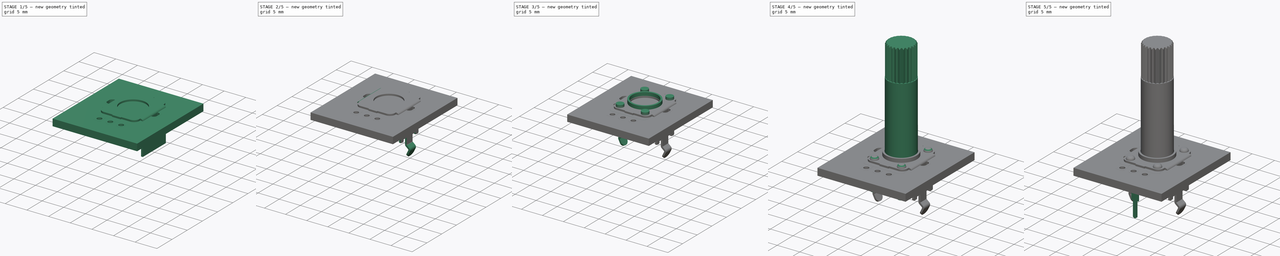
[diagram: build sequence overview — one tinted view per stage of 5, left to right]
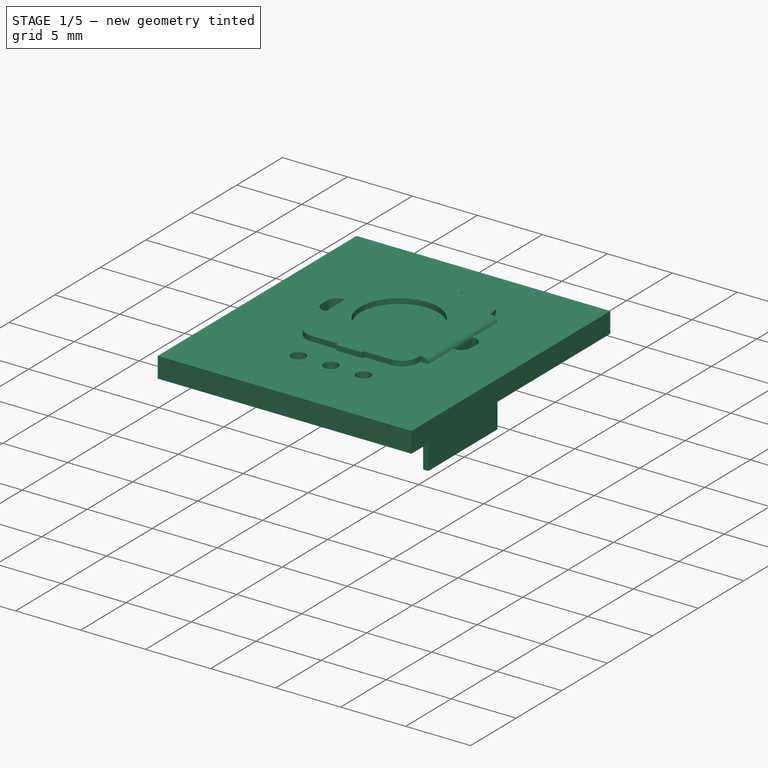
[diagram: stage 1 of 5 — iso view after this stage's code; geometry added in this stage tinted green]
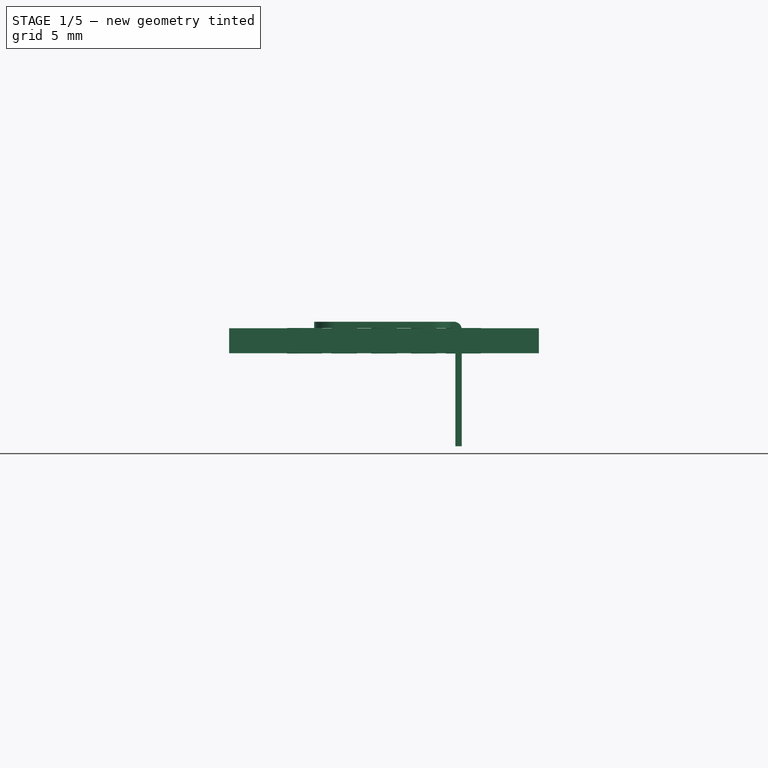
[diagram: stage 1 of 5 — front view after this stage's code; geometry added in this stage tinted green]
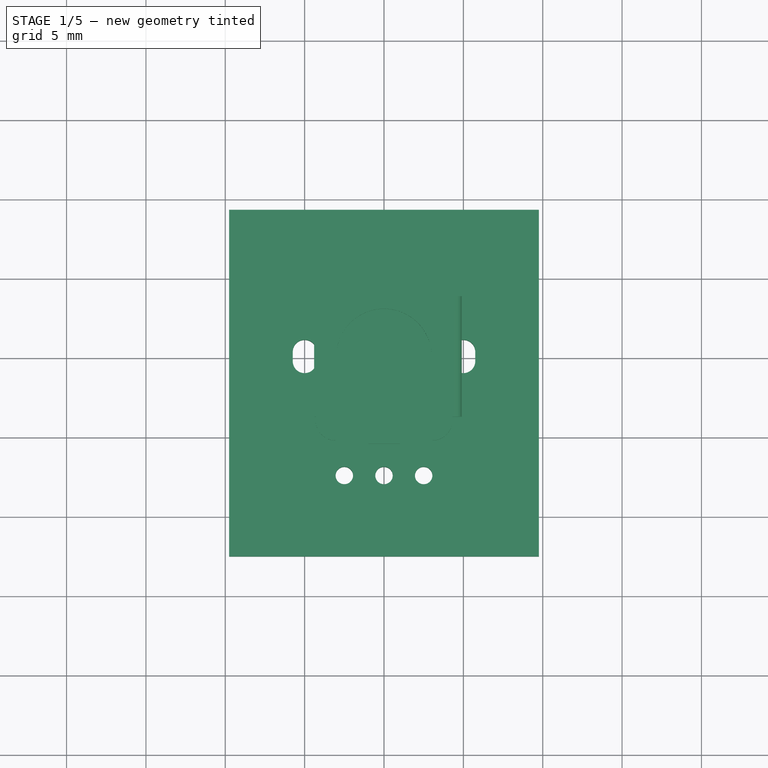
[diagram: stage 1 of 5 — top view after this stage's code; geometry added in this stage tinted green]
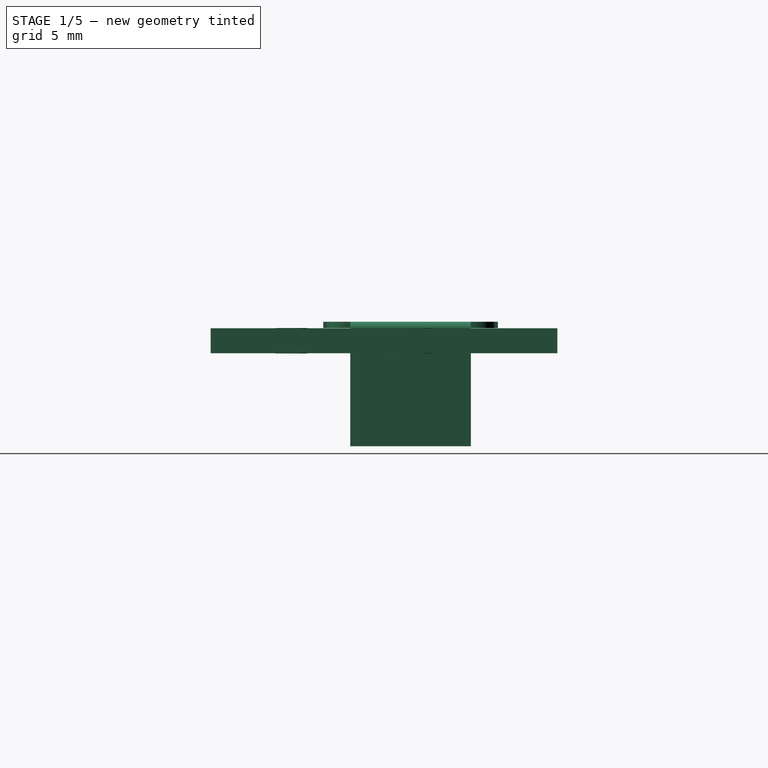
[diagram: stage 1 of 5 — right view after this stage's code; geometry added in this stage tinted green]
FCSTD DOCUMENT  (FreeCAD 0.17R13522 (Git))
Label: ALPS-RK09K_color_ksu
License: All rights reserved
LicenseURL: http://fr.wikipedia.org/wiki/<copyright redacted>
objects: Sketcher::SketchObject×12, PartDesign::Pad×7, PartDesign::FeaturePython×7, Part::Feature×6, PartDesign::Fillet×5, PartDesign::Pocket×5, Part::Part2DObjectPython×5, Part::FeaturePython×5, PartDesign::Body×3, PartDesign::Chamfer×2, PartDesign::PolarPattern×1, App::DocumentObjectGroup×1
note: 70 computed .brp shape members not serialized (recipe doc carries the construction recipe); baked Part::Feature solids carry a one-line shape summary decoded from their .brp

FEATURE [Part::Part2DObjectPython] Shape2DView003  # Draft 2D object (typed FeaturePython)
  HiddenLines = false
  InPlace = true
  Placement = pos=(0,0,0) rot=(0.707107,0,-0.707107;3.14159rad)
  Projection = (1,0,0)
  ProjectionMode = 0
  SegmentLength = 0.05
  Tessellation = false
  VisibleOnly = false
FEATURE [Part::Part2DObjectPython] Shape2DView004  # Draft 2D object (typed FeaturePython)
  HiddenLines = false
  InPlace = true
  Projection = (0,0,-1)
  ProjectionMode = 0
  SegmentLength = 0.05
  Tessellation = false
  VisibleOnly = false
FEATURE [Sketcher::SketchObject] Sketch005
  MapMode = 5
  Support = -> [XY_Plane001]
  sketch-geometry (25):
    g0: LineSegment StartX=-3.05 StartY=5.3 StartZ=0 EndX=-1 EndY=5.3 EndZ=0
    g1: LineSegment StartX=-1 StartY=5.3 StartZ=0 EndX=-1 EndY=5.5 EndZ=0
    g2: LineSegment StartX=-1 StartY=5.5 StartZ=0 EndX=1 EndY=5.5 EndZ=0
    g3: LineSegment StartX=1 StartY=5.5 StartZ=0 EndX=1 EndY=5.3 EndZ=0
    g4: LineSegment StartX=1 StartY=5.3 StartZ=0 EndX=3.05 EndY=5.3 EndZ=0
    g5: ArcOfCircle CenterX=-3.05 CenterY=4.05 CenterZ=0 NormalX=0 NormalY=0 NormalZ=1 AngleXU=0 Radius=1.25 StartAngle=1.5708 EndAngle=3.14159
    g6: ArcOfCircle CenterX=-3.05 CenterY=-4.05 CenterZ=0 NormalX=0 NormalY=0 NormalZ=1 AngleXU=0 Radius=1.25 StartAngle=3.14159 EndAngle=4.71239
    g7: LineSegment StartX=-3.05 StartY=-5.3 StartZ=0 EndX=-1 EndY=-5.3 EndZ=0
    g8: LineSegment StartX=-1 StartY=-5.3 StartZ=0 EndX=-1 EndY=-5.5 EndZ=0
    g9: LineSegment StartX=-1 StartY=-5.5 StartZ=0 EndX=1 EndY=-5.5 EndZ=0
    g10: LineSegment StartX=1 StartY=-5.5 StartZ=0 EndX=1 EndY=-5.3 EndZ=0
    g11: LineSegment StartX=1 StartY=-5.3 StartZ=0 EndX=3.05 EndY=-5.3 EndZ=0
    g12: ArcOfCircle CenterX=3.05 CenterY=4.05 CenterZ=0 NormalX=0 NormalY=0 NormalZ=1 AngleXU=0 Radius=1.25 StartAngle=0 EndAngle=1.5708
    g13: ArcOfCircle CenterX=3.05 CenterY=-4.05 CenterZ=0 NormalX=0 NormalY=0 NormalZ=1 AngleXU=0 Radius=1.25 StartAngle=4.71239 EndAngle=6.28319
    g14: Circle CenterX=0 CenterY=0 CenterZ=0 NormalX=0 NormalY=0 NormalZ=1 AngleXU=0 Radius=3
    g15: LineSegment StartX=-4.3 StartY=-3.8 StartZ=0 EndX=-4.4 EndY=-3.8 EndZ=0
    g16: LineSegment StartX=-4.4 StartY=-3.8 StartZ=0 EndX=-4.4 EndY=3.8 EndZ=0
    g17: LineSegment StartX=-4.4 StartY=3.8 StartZ=0 EndX=-4.3 EndY=3.8 EndZ=0
    g18: LineSegment StartX=-4.3 StartY=3.8 StartZ=0 EndX=-4.3 EndY=4.05 EndZ=0
    g19: LineSegment StartX=-4.3 StartY=-3.8 StartZ=0 EndX=-4.3 EndY=-4.05 EndZ=0
    g20: LineSegment StartX=4.3 StartY=4.05 StartZ=0 EndX=4.3 EndY=3.8 EndZ=0
    g21: LineSegment StartX=4.3 StartY=3.8 StartZ=0 EndX=4.4 EndY=3.8 EndZ=0
    g22: LineSegment StartX=4.4 StartY=3.8 StartZ=0 EndX=4.4 EndY=-3.8 EndZ=0
    g23: LineSegment StartX=4.4 StartY=-3.8 StartZ=0 EndX=4.3 EndY=-3.8 EndZ=0
    g24: LineSegment StartX=4.3 StartY=-3.8 StartZ=0 EndX=4.3 EndY=-4.05 EndZ=0
  constraints (66):
    c: Horizontal(g0)
    c: Coincident(g0,g1)
    c: Vertical(g1)
    c: Coincident(g1,g2)
    c: Horizontal(g2)
    c: Coincident(g2,g3)
    c: Coincident(g3,g4)
    c: Horizontal(g4)
    c: DistanceX(g1) = -1
    c: DistanceY(g1) = 5.5
    c: Symmetric(g1,g2,g-2)
    c: DistanceY(g1,g1) = 0.2
    c: Tangent(g5,g0) = 1.5708
    c: Radius(g5) = 1.25
    c: Symmetric(g5,g19,g-1)
    c: DistanceX(g5,g-1) = 4.3
    c: Horizontal(g7)
    c: Coincident(g7,g8)
    c: Vertical(g8)
    c: Coincident(g8,g9)
    c: Horizontal(g9)
    c: Coincident(g9,g10)
    c: Vertical(g10)
    c: Coincident(g10,g11)
    c: Horizontal(g11)
    c: Symmetric(g7,g0,g-1)
    c: Symmetric(g8,g1,g-1)
    c: Symmetric(g9,g8,g-2)
    c: Horizontal(g7,g10)
    c: Vertical(g11,g4)
    c: Symmetric(g4,g0,g-2)
    c: Symmetric(g20,g5,g-2)
    c: Tangent(g12,g4) = 1.5708
    c: Symmetric(g24,g20,g-1)
    c: Tangent(g13,g11) = -1.5708
    c: Tangent(g6,g7) = -1.5708
    c: Vertical(g3)
    c: Coincident(g14,g-1)
    c: Radius(g14) = 3
    c: Horizontal(g15)
    c: Coincident(g15,g16)
    c: Vertical(g16)
    c: Coincident(g16,g17)
    c: Horizontal(g17)
    c: Coincident(g18,g17)
    c: Vertical(g18)
    c: Coincident(g19,g15)
    c: Vertical(g19)
    c: Tangent(g18,g5) = 1.5708
    c: DistanceX(g16) = -4.4
    c: DistanceY(g16) = 3.8
    c: Symmetric(g16,g15,g-1)
    c: Tangent(g6,g19) = -1.5708
    c: Vertical(g20)
    c: Coincident(g20,g21)
    c: Horizontal(g21)
    c: Coincident(g21,g22)
    c: Vertical(g22)
    c: Coincident(g22,g23)
    c: Horizontal(g23)
    c: Coincident(g23,g24)
    c: Vertical(g24)
    c: Tangent(g13,g24) = 1.5708
    c: Symmetric(g21,g16,g-2)
    c: Tangent(g20,g12) = 1.5708
    c: Symmetric(g21,g22,g-1)
FEATURE [PartDesign::Pad] Pad004
  Length = 0.4
  Length2 = 100
  Profile = -> Sketch005
  Type = 0
FEATURE [PartDesign::FeaturePython] Bend  # WARN: FeaturePython — macro-defined, semantics opaque (R4)
  BaseFeature = -> Pad004
  angle = -90
  baseObject = -> Pad004 [Face14]
  extend1 = 0
  extend2 = 0
  gap1 = 0
  gap2 = 0
  invert = false
  kfactor = 0.45
  length = 7.35
  miterangle1 = 0
  miterangle2 = 0
  radius = 0.1
  reliefType = 0
  reliefd = 1
  reliefw = 0.5
  unfold = false
FEATURE [PartDesign::Body] Body001
  Group = -> [Sketch005,Pad004,Bend,Sketch006,Pocket001,Bend001,Bend002,Fillet002,Bend003,Sketch007,Pocket002,Bend004,Bend005,Fillet003,Sketch011,Pad006]
  Origin = -> Origin001
  Tip = -> Pad006
FEATURE [Part::Feature] Body002001  label="pin1"
  Placement = pos=(-2.5,0,0) rot=(0,0,1;0rad)
  shape: bbox 1.5 x 7.15 x 6.634 mm, 20 faces (baked)
FEATURE [Part::Feature] Body002002  label="pin3"
  Placement = pos=(2.5,0,0) rot=(0,0,1;0rad)
  shape: bbox 1.5 x 7.15 x 6.634 mm, 20 faces (baked)
FEATURE [Part::Feature] Body002003  label="pin2"
  shape: bbox 1.5 x 7.15 x 6.634 mm, 20 faces (baked)
FEATURE [Part::Feature] Body002004  label="Body003"
  shape: bbox 8.8 x 11.8 x 28.98 mm, 172 faces (baked)
FEATURE [Part::Feature] Body001001  label="Body004"
  shape: bbox 11.39 x 11 x 11.39 mm, 123 faces (baked)
FEATURE [Part::FeaturePython] Filk_lines  label="FrontSilk"  # a2plus imported part (geometry in sourceFile) (typed FeaturePython)
  fixedPosition = true
FEATURE [Part::FeaturePython] TopPads  # a2plus imported part (geometry in sourceFile) (typed FeaturePython)
  fixedPosition = true
FEATURE [Part::FeaturePython] BotPads  # a2plus imported part (geometry in sourceFile) (typed FeaturePython)
  fixedPosition = true
FEATURE [Part::FeaturePython] THPs  label="PTHs"  # a2plus imported part (geometry in sourceFile) (typed FeaturePython)
  fixedPosition = true
FEATURE [Part::FeaturePython] newPCB  label="Pcb"  # a2plus imported part (geometry in sourceFile) (typed FeaturePython)
  fixedPosition = true
FEATURE [App::DocumentObjectGroup] POT_SINGLE_P9_VERTICAL_fp
  Group = -> [Filk_lines,TopPads,BotPads,THPs,newPCB]
FEATURE [Part::Feature] Shape001  label="ALPS-RK09K"
  shape: bbox 11.39 x 12.65 x 33.19 mm, 350 faces (baked)
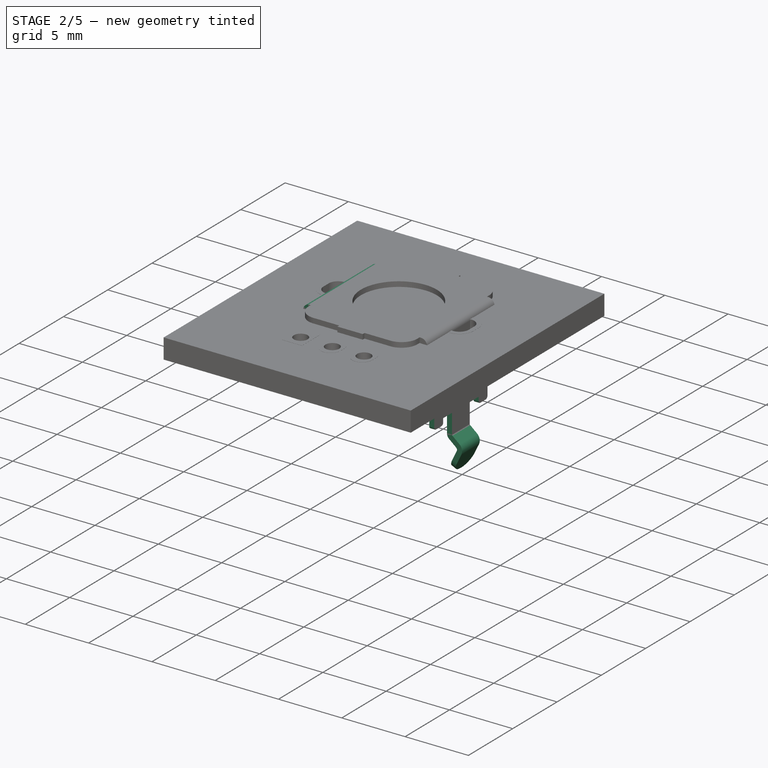
[diagram: stage 2 of 5 — iso view after this stage's code; geometry added in this stage tinted green]
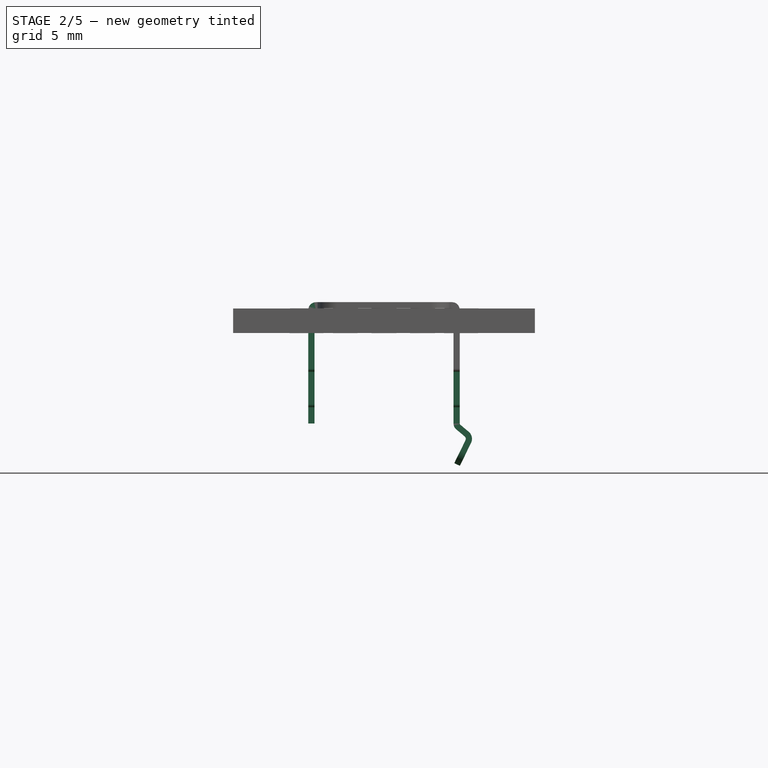
[diagram: stage 2 of 5 — front view after this stage's code; geometry added in this stage tinted green]
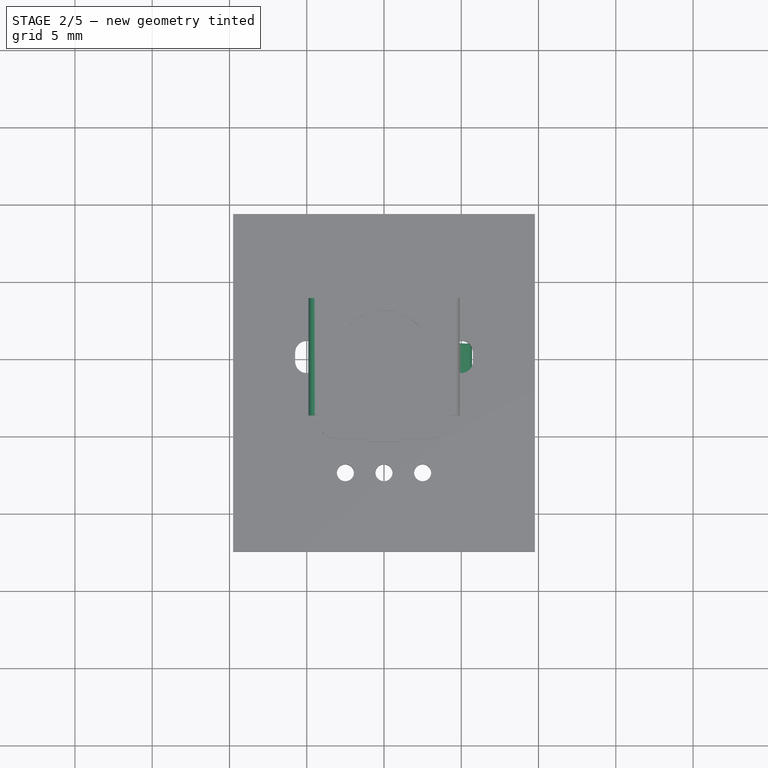
[diagram: stage 2 of 5 — top view after this stage's code; geometry added in this stage tinted green]
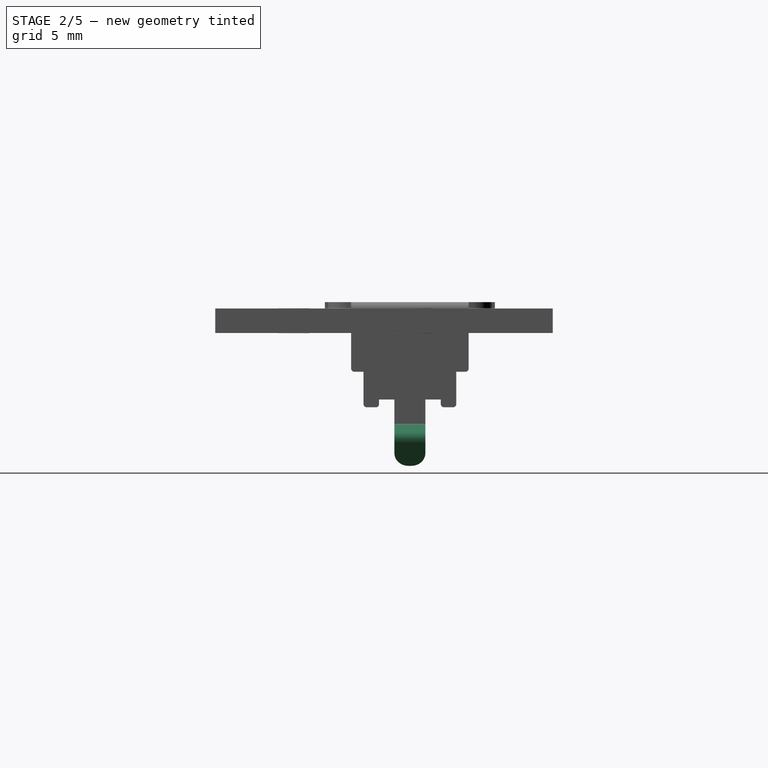
[diagram: stage 2 of 5 — right view after this stage's code; geometry added in this stage tinted green]
FEATURE [Sketcher::SketchObject] Sketch006
  MapMode = 5
  Placement = pos=(4.9,0,0) rot=(0.57735,0.57735,0.57735;2.0944rad)
  Support = -> [Bend]
  sketch-geometry (26):
    g0: LineSegment StartX=-1 StartY=-7.5 StartZ=0 EndX=-1 EndY=-5.9 EndZ=0
    g1: LineSegment StartX=-1 StartY=-5.9 StartZ=0 EndX=-2 EndY=-5.9 EndZ=0
    g2: LineSegment StartX=-2 StartY=-5.9 StartZ=0 EndX=-2 EndY=-6.2 EndZ=0
    g3: ArcOfCircle CenterX=-2.2 CenterY=-6.2 CenterZ=0 NormalX=0 NormalY=0 NormalZ=1 AngleXU=0 Radius=0.2 StartAngle=4.71239 EndAngle=6.28319
    g4: ArcOfCircle CenterX=-2.8 CenterY=-6.2 CenterZ=0 NormalX=0 NormalY=0 NormalZ=1 AngleXU=0 Radius=0.2 StartAngle=3.14159 EndAngle=4.71239
    g5: ArcOfCircle CenterX=2.2 CenterY=-6.2 CenterZ=0 NormalX=0 NormalY=0 NormalZ=1 AngleXU=0 Radius=0.2 StartAngle=3.14159 EndAngle=4.71239
    g6: ArcOfCircle CenterX=2.8 CenterY=-6.2 CenterZ=0 NormalX=0 NormalY=0 NormalZ=1 AngleXU=0 Radius=0.2 StartAngle=4.71239 EndAngle=6.28319
    g7: LineSegment StartX=-1 StartY=-7.5 StartZ=0 EndX=1 EndY=-7.5 EndZ=0
    g8: LineSegment StartX=1 StartY=-7.5 StartZ=0 EndX=1 EndY=-5.9 EndZ=0
    g9: LineSegment StartX=1 StartY=-5.9 StartZ=0 EndX=2 EndY=-5.9 EndZ=0
    g10: LineSegment StartX=2 StartY=-5.9 StartZ=0 EndX=2 EndY=-6.2 EndZ=0
    g11: LineSegment StartX=2.2 StartY=-6.4 StartZ=0 EndX=2.8 EndY=-6.4 EndZ=0
    g12: LineSegment StartX=3 StartY=-6.2 StartZ=0 EndX=3 EndY=-4.1 EndZ=0
    g13: LineSegment StartX=3 StartY=-4.1 StartZ=0 EndX=3.6 EndY=-4.1 EndZ=0
    g14: LineSegment StartX=-3 StartY=-6.2 StartZ=0 EndX=-3 EndY=-4.1 EndZ=0
    g15: LineSegment StartX=-3 StartY=-4.1 StartZ=0 EndX=-3.6 EndY=-4.1 EndZ=0
    g16: LineSegment StartX=-2.8 StartY=-6.4 StartZ=0 EndX=-2.2 EndY=-6.4 EndZ=0
    g17: ArcOfCircle CenterX=3.6 CenterY=-3.9 CenterZ=0 NormalX=0 NormalY=0 NormalZ=1 AngleXU=0 Radius=0.2 StartAngle=4.71239 EndAngle=6.28319
    g18: ArcOfCircle CenterX=-3.6 CenterY=-3.9 CenterZ=0 NormalX=0 NormalY=0 NormalZ=1 AngleXU=0 Radius=0.2 StartAngle=3.14159 EndAngle=4.71239
    g19: LineSegment StartX=3.8 StartY=-3.9 StartZ=0 EndX=3.8 EndY=-3 EndZ=0
    g20: LineSegment StartX=3.8 StartY=-3 StartZ=0 EndX=5 EndY=-3 EndZ=0
    g21: LineSegment StartX=5 StartY=-3 StartZ=0 EndX=5 EndY=-9 EndZ=0
    g22: LineSegment StartX=5 StartY=-9 StartZ=0 EndX=-5 EndY=-9 EndZ=0
    g23: LineSegment StartX=-5 StartY=-9 StartZ=0 EndX=-5 EndY=-3 EndZ=0
    g24: LineSegment StartX=-5 StartY=-3 StartZ=0 EndX=-3.8 EndY=-3 EndZ=0
    g25: LineSegment StartX=-3.8 StartY=-3 StartZ=0 EndX=-3.8 EndY=-3.9 EndZ=0
  constraints (70):
    c: Vertical(g0)
    c: Coincident(g0,g1)
    c: Horizontal(g1)
    c: Coincident(g1,g2)
    c: Vertical(g2)
    c: Coincident(g0,g7)
    c: Horizontal(g7)
    c: Coincident(g7,g8)
    c: Vertical(g8)
    c: Coincident(g8,g9)
    c: Horizontal(g9)
    c: Coincident(g9,g10)
    c: Vertical(g10)
    c: Tangent(g5,g11) = -1.5708
    c: Tangent(g6,g12) = -1.5708
    c: Coincident(g12,g13)
    c: Horizontal(g13)
    c: Tangent(g4,g14) = 1.5708
    c: Vertical(g14)
    c: Coincident(g14,g15)
    c: Horizontal(g15)
    c: Horizontal(g16)
    c: Tangent(g16,g3) = -1.5708
    c: Tangent(g16,g4) = -1.5708
    c: Tangent(g10,g5) = -1.5708
    c: Vertical(g12)
    c: Tangent(g17,g13) = -1.5708
    c: Tangent(g17,g19) = -1.5708
    c: Coincident(g19,g20)
    c: Horizontal(g20)
    c: Coincident(g20,g21)
    c: Vertical(g21)
    c: Coincident(g21,g22)
    c: Horizontal(g22)
    c: Coincident(g22,g23)
    c: Vertical(g23)
    c: Coincident(g23,g24)
    c: Horizontal(g24)
    c: Coincident(g24,g25)
    c: Vertical(g19)
    c: DistanceX(g14) = -3
    c: DistanceY(g14) = -4.1
    c: DistanceX(g0) = -1
    c: DistanceY(g0) = -5.9
    c: DistanceY(g0,g-1) = 7.5
    c: DistanceX(g22) = -5
    c: DistanceY(g22) = -9
    c: Vertical(g25)
    c: DistanceX(g1,g1) = 1
    c: DistanceY(g14,g14) = 2.1
    c: Radius(g4) = 0.2
    c: Radius(g18) = 0.2
    c: DistanceY(g23,g23) = 6
    c: Symmetric(g0,g7,g-2)
    c: Horizontal(g0,g8)
    c: Horizontal(g2,g5)
    c: Horizontal(g3,g5)
    c: Symmetric(g14,g12,g-2)
    c: Symmetric(g19,g24,g-2)
    c: Symmetric(g20,g23,g-2)
    c: Tangent(g3,g2) = 1.5708
    c: Tangent(g25,g18) = -1.5708
    c: Tangent(g18,g15) = 1.5708
    c: Symmetric(g9,g1,g-2)
    c: Symmetric(g5,g3,g-2)
    c: Symmetric(g6,g4,g-2)
    c: Tangent(g11,g6) = -1.5708
    c: Radius(g3) = 0.2
    c: Symmetric(g13,g15,g-2)
    c: DistanceX(g24,g-1) = 3.8
FEATURE [PartDesign::Pocket] Pocket001
  BaseFeature = -> Bend
  Length = 0.4
  Length2 = 100
  Profile = -> Sketch006
  Type = 0
FEATURE [PartDesign::FeaturePython] Bend001  # WARN: FeaturePython — macro-defined, semantics opaque (R4)
  BaseFeature = -> Pocket001
  angle = 50
  baseObject = -> Pocket001 [Face1]
  extend1 = 0
  extend2 = 0
  gap1 = 0
  gap2 = 0
  invert = false
  kfactor = 0.45
  length = 0.71
  miterangle1 = 0
  miterangle2 = 0
  radius = 0.1
  reliefType = 0
  reliefd = 0.5
  reliefw = 0.5
  unfold = false
FEATURE [PartDesign::FeaturePython] Bend002  # WARN: FeaturePython — macro-defined, semantics opaque (R4)
  BaseFeature = -> Bend001
  angle = 76
  baseObject = -> Bend001 [Face1]
  extend1 = 0
  extend2 = 0
  gap1 = 0
  gap2 = 0
  invert = true
  kfactor = 0.45
  length = 1.65
  miterangle1 = 0
  miterangle2 = 0
  radius = 0.2
  reliefType = 0
  reliefd = 1
  reliefw = 0.5
  unfold = false
FEATURE [PartDesign::Fillet] Fillet002
  Base = -> Bend002 [Edge2,Edge1]
  BaseFeature = -> Bend002
  Radius = 0.9
FEATURE [PartDesign::FeaturePython] Bend003  # WARN: FeaturePython — macro-defined, semantics opaque (R4)
  BaseFeature = -> Fillet002
  angle = 90
  baseObject = -> Fillet002 [Face52]
  extend1 = 0
  extend2 = 0
  gap1 = 0
  gap2 = 0
  invert = true
  kfactor = 0.45
  length = 7.35
  miterangle1 = 0
  miterangle2 = 0
  radius = 0.1
  reliefType = 0
  reliefd = 1
  reliefw = 0.5
  unfold = false
FEATURE [Sketcher::SketchObject] Sketch007
  MapMode = 5
  Placement = pos=(-4.9,0,0) rot=(0.57735,-0.57735,-0.57735;2.0944rad)
  Support = -> [Bend003]
  sketch-geometry (26):
    g0: LineSegment StartX=-1 StartY=-7.5 StartZ=0 EndX=-1 EndY=-5.9 EndZ=0
    g1: LineSegment StartX=-1 StartY=-5.9 StartZ=0 EndX=-2 EndY=-5.9 EndZ=0
    g2: LineSegment StartX=-2 StartY=-5.9 StartZ=0 EndX=-2 EndY=-6.2 EndZ=0
    g3: ArcOfCircle CenterX=-2.2 CenterY=-6.2 CenterZ=0 NormalX=0 NormalY=0 NormalZ=1 AngleXU=0 Radius=0.2 StartAngle=4.71239 EndAngle=6.28319
    g4: ArcOfCircle CenterX=-2.8 CenterY=-6.2 CenterZ=0 NormalX=0 NormalY=0 NormalZ=1 AngleXU=0 Radius=0.2 StartAngle=3.14159 EndAngle=4.71239
    g5: ArcOfCircle CenterX=2.2 CenterY=-6.2 CenterZ=0 NormalX=0 NormalY=0 NormalZ=1 AngleXU=0 Radius=0.2 StartAngle=3.14159 EndAngle=4.71239
    g6: ArcOfCircle CenterX=2.8 CenterY=-6.2 CenterZ=0 NormalX=0 NormalY=0 NormalZ=1 AngleXU=0 Radius=0.2 StartAngle=4.71239 EndAngle=6.28319
    g7: LineSegment StartX=-1 StartY=-7.5 StartZ=0 EndX=1 EndY=-7.5 EndZ=0
    g8: LineSegment StartX=1 StartY=-7.5 StartZ=0 EndX=1 EndY=-5.9 EndZ=0
    g9: LineSegment StartX=1 StartY=-5.9 StartZ=0 EndX=2 EndY=-5.9 EndZ=0
    g10: LineSegment StartX=2 StartY=-5.9 StartZ=0 EndX=2 EndY=-6.2 EndZ=0
    g11: LineSegment StartX=2.2 StartY=-6.4 StartZ=0 EndX=2.8 EndY=-6.4 EndZ=0
    g12: LineSegment StartX=3 StartY=-6.2 StartZ=0 EndX=3 EndY=-4.1 EndZ=0
    g13: LineSegment StartX=3 StartY=-4.1 StartZ=0 EndX=3.6 EndY=-4.1 EndZ=0
    g14: LineSegment StartX=-3 StartY=-6.2 StartZ=0 EndX=-3 EndY=-4.1 EndZ=0
    g15: LineSegment StartX=-3 StartY=-4.1 StartZ=0 EndX=-3.6 EndY=-4.1 EndZ=0
    g16: LineSegment StartX=-2.8 StartY=-6.4 StartZ=0 EndX=-2.2 EndY=-6.4 EndZ=0
    g17: ArcOfCircle CenterX=3.6 CenterY=-3.9 CenterZ=0 NormalX=0 NormalY=0 NormalZ=1 AngleXU=0 Radius=0.2 StartAngle=4.71239 EndAngle=6.28319
    g18: ArcOfCircle CenterX=-3.6 CenterY=-3.9 CenterZ=0 NormalX=0 NormalY=0 NormalZ=1 AngleXU=0 Radius=0.2 StartAngle=3.14159 EndAngle=4.71239
    g19: LineSegment StartX=3.8 StartY=-3.9 StartZ=0 EndX=3.8 EndY=-3 EndZ=0
    g20: LineSegment StartX=3.8 StartY=-3 StartZ=0 EndX=5 EndY=-3 EndZ=0
    g21: LineSegment StartX=5 StartY=-3 StartZ=0 EndX=5 EndY=-9 EndZ=0
    g22: LineSegment StartX=5 StartY=-9 StartZ=0 EndX=-5 EndY=-9 EndZ=0
    g23: LineSegment StartX=-5 StartY=-9 StartZ=0 EndX=-5 EndY=-3 EndZ=0
    g24: LineSegment StartX=-5 StartY=-3 StartZ=0 EndX=-3.8 EndY=-3 EndZ=0
    g25: LineSegment StartX=-3.8 StartY=-3 StartZ=0 EndX=-3.8 EndY=-3.9 EndZ=0
  constraints (70):
    c: Vertical(g0)
    c: Coincident(g0,g1)
    c: Horizontal(g1)
    c: Coincident(g1,g2)
    c: Vertical(g2)
    c: Coincident(g0,g7)
    c: Horizontal(g7)
    c: Coincident(g7,g8)
    c: Vertical(g8)
    c: Coincident(g8,g9)
    c: Horizontal(g9)
    c: Coincident(g9,g10)
    c: Vertical(g10)
    c: Tangent(g5,g11) = -1.5708
    c: Tangent(g6,g12) = -1.5708
    c: Coincident(g12,g13)
    c: Horizontal(g13)
    c: Tangent(g4,g14) = 1.5708
    c: Vertical(g14)
    c: Coincident(g14,g15)
    c: Horizontal(g15)
    c: Horizontal(g16)
    c: Tangent(g16,g3) = -1.5708
    c: Tangent(g16,g4) = -1.5708
    c: Tangent(g10,g5) = -1.5708
    c: Vertical(g12)
    c: Tangent(g17,g13) = -1.5708
    c: Tangent(g17,g19) = -1.5708
    c: Coincident(g19,g20)
    c: Horizontal(g20)
    c: Coincident(g20,g21)
    c: Vertical(g21)
    c: Coincident(g21,g22)
    c: Horizontal(g22)
    c: Coincident(g22,g23)
    c: Vertical(g23)
    c: Coincident(g23,g24)
    c: Horizontal(g24)
    c: Coincident(g24,g25)
    c: Vertical(g19)
    c: DistanceX(g14) = -3
    c: DistanceY(g14) = -4.1
    c: DistanceX(g0) = -1
    c: DistanceY(g0) = -5.9
    c: DistanceY(g0,g-1) = 7.5
    c: DistanceX(g22) = -5
    c: DistanceY(g22) = -9
    c: Vertical(g25)
    c: DistanceX(g1,g1) = 1
    c: DistanceY(g14,g14) = 2.1
    c: Radius(g4) = 0.2
    c: Radius(g18) = 0.2
    c: DistanceY(g23,g23) = 6
    c: Symmetric(g0,g7,g-2)
    c: Horizontal(g0,g8)
    c: Horizontal(g2,g5)
    c: Horizontal(g3,g5)
    c: Symmetric(g14,g12,g-2)
    c: Symmetric(g19,g24,g-2)
    c: Symmetric(g20,g23,g-2)
    c: Tangent(g3,g2) = 1.5708
    c: Tangent(g25,g18) = -1.5708
    c: Tangent(g18,g15) = 1.5708
    c: Symmetric(g9,g1,g-2)
    c: Symmetric(g5,g3,g-2)
    c: Symmetric(g6,g4,g-2)
    c: Tangent(g11,g6) = -1.5708
    c: Radius(g3) = 0.2
    c: Symmetric(g13,g15,g-2)
    c: DistanceX(g24,g-1) = 3.8
FEATURE [PartDesign::Pocket] Pocket002
  BaseFeature = -> Bend003
  Length = 0.4
  Length2 = 100
  Profile = -> Sketch007
  Type = 0
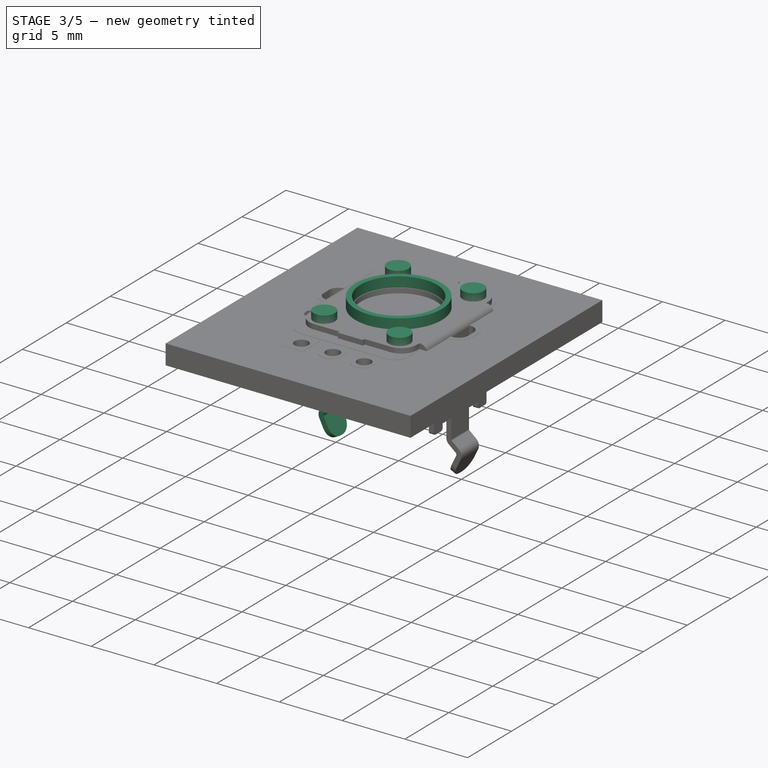
[diagram: stage 3 of 5 — iso view after this stage's code; geometry added in this stage tinted green]
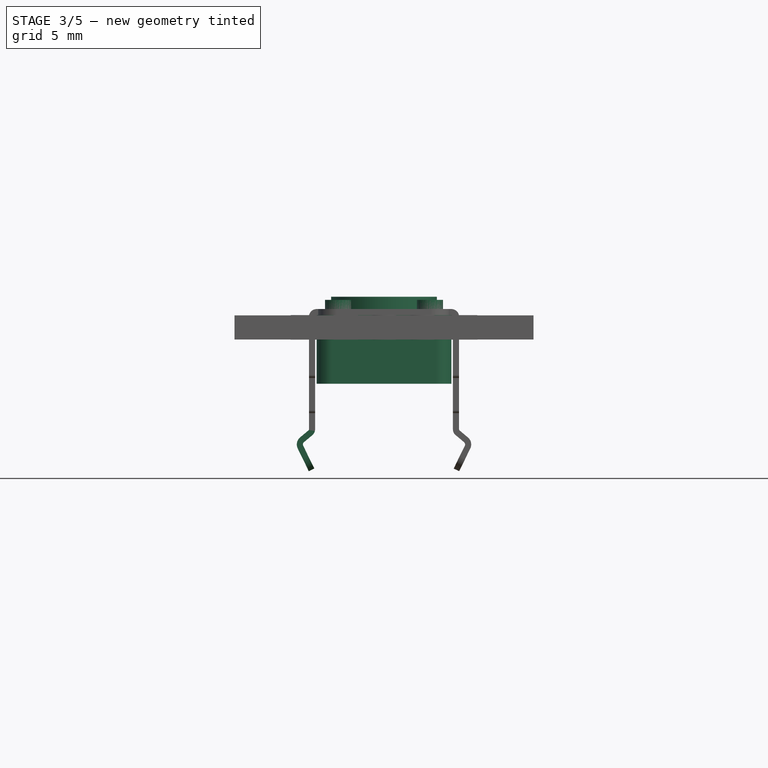
[diagram: stage 3 of 5 — front view after this stage's code; geometry added in this stage tinted green]
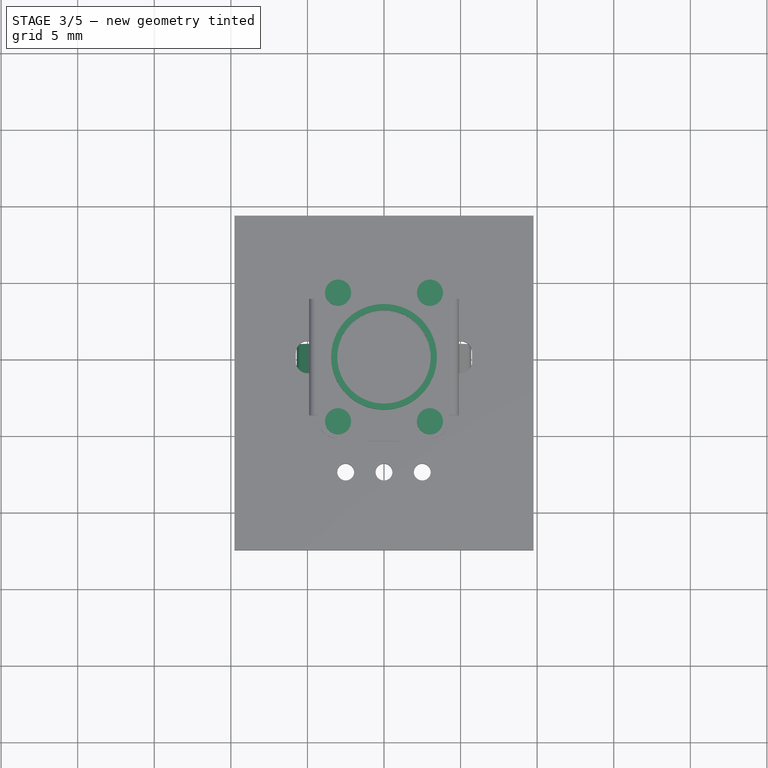
[diagram: stage 3 of 5 — top view after this stage's code; geometry added in this stage tinted green]
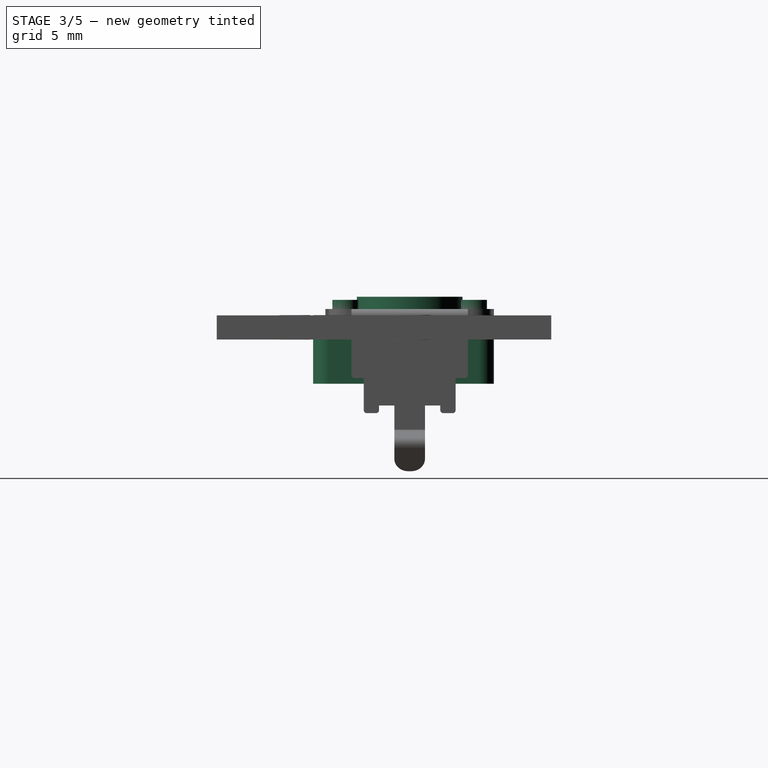
[diagram: stage 3 of 5 — right view after this stage's code; geometry added in this stage tinted green]
FEATURE [Sketcher::SketchObject] Sketch
  MapMode = 5
  Support = -> [XY_Plane]
  sketch-geometry (4):
    g0: LineSegment StartX=-4.4 StartY=5.5 StartZ=0 EndX=4.4 EndY=5.5 EndZ=0
    g1: LineSegment StartX=4.4 StartY=5.5 StartZ=0 EndX=4.4 EndY=-6.3 EndZ=0
    g2: LineSegment StartX=4.4 StartY=-6.3 StartZ=0 EndX=-4.4 EndY=-6.3 EndZ=0
    g3: LineSegment StartX=-4.4 StartY=-6.3 StartZ=0 EndX=-4.4 EndY=5.5 EndZ=0
  constraints (12):
    c: Coincident(g0,g1)
    c: Coincident(g1,g2)
    c: Coincident(g2,g3)
    c: Coincident(g3,g0)
    c: Horizontal(g0)
    c: Horizontal(g2)
    c: Vertical(g1)
    c: Vertical(g3)
    c: DistanceY(g-1,g0) = 5.5
    c: DistanceY(g1,g1) = 11.8
    c: Symmetric(g0,g0,g-2)
    c: DistanceX(g0,g0) = 8.8
FEATURE [PartDesign::Pad] Pad
  Length = 4.48
  Length2 = 100
  Profile = -> Sketch
  Reversed = true
  Type = 0
FEATURE [PartDesign::Fillet] Fillet
  Base = -> Pad [Edge1,Edge8,Edge5,Edge2]
  BaseFeature = -> Pad
  Radius = 1
FEATURE [Sketcher::SketchObject] Sketch001
  MapMode = 5
  Support = -> [Fillet]
  expr: Constraints[0] = 1.7 / 2
  sketch-geometry (4):
    g0: Circle CenterX=-3 CenterY=4.2 CenterZ=0 NormalX=0 NormalY=0 NormalZ=1 AngleXU=0 Radius=0.85
    g1: Circle CenterX=3 CenterY=4.2 CenterZ=0 NormalX=0 NormalY=0 NormalZ=1 AngleXU=0 Radius=0.85
    g2: Circle CenterX=3 CenterY=-4.2 CenterZ=0 NormalX=0 NormalY=0 NormalZ=1 AngleXU=0 Radius=0.85
    g3: Circle CenterX=-3 CenterY=-4.2 CenterZ=0 NormalX=0 NormalY=0 NormalZ=1 AngleXU=0 Radius=0.85
  constraints (10):
    c: Radius(g0) = 0.85
    c: Equal(g0,g1)
    c: Equal(g0,g3)
    c: Equal(g0,g2)
    c: DistanceX(g0,g-1) = 3
    c: Symmetric(g0,g1,g-2)
    c: Symmetric(g3,g2,g-2)
    c: Vertical(g3,g0)
    c: DistanceY(g2,g1) = 8.4
    c: DistanceY(g-1,g0) = 4.2
FEATURE [PartDesign::Pad] Pad001
  BaseFeature = -> Fillet
  Length = 1
  Length2 = 100
  Profile = -> Sketch001
  Type = 0
FEATURE [PartDesign::FeaturePython] Bend004  # WARN: FeaturePython — macro-defined, semantics opaque (R4)
  BaseFeature = -> Pocket002
  angle = 50
  baseObject = -> Pocket002 [Face1]
  extend1 = 0
  extend2 = 0
  gap1 = 0
  gap2 = 0
  invert = false
  kfactor = 0.45
  length = 0.71
  miterangle1 = 0
  miterangle2 = 0
  radius = 0.1
  reliefType = 0
  reliefd = 1
  reliefw = 0.5
  unfold = false
FEATURE [PartDesign::FeaturePython] Bend005  # WARN: FeaturePython — macro-defined, semantics opaque (R4)
  BaseFeature = -> Bend004
  angle = 76
  baseObject = -> Bend004 [Face1]
  extend1 = 0
  extend2 = 0
  gap1 = 0
  gap2 = 0
  invert = true
  kfactor = 0.45
  length = 1.65
  miterangle1 = 0
  miterangle2 = 0
  radius = 0.2
  reliefType = 0
  reliefd = 1
  reliefw = 0.5
  unfold = false
FEATURE [PartDesign::Fillet] Fillet003
  Base = -> Bend005 [Edge1,Edge2]
  BaseFeature = -> Bend005
  Radius = 0.9
FEATURE [PartDesign::Body] Body
  Group = -> [Sketch,Pad,Fillet,Sketch001,Pad001,Fillet001,Sketch002,Pad002,Chamfer,Sketch003,Pocket,PolarPattern,Sketch004,Pad003,Chamfer001,Sketch010,Pocket004]
  Origin = -> Origin
  Tip = -> Pocket004
FEATURE [Sketcher::SketchObject] Sketch011
  MapMode = 5
  Placement = pos=(0,0,0.4) rot=(0,0,1;0rad)
  Support = -> [Fillet003]
  sketch-geometry (2):
    g0: Circle CenterX=0 CenterY=0 CenterZ=0 NormalX=0 NormalY=0 NormalZ=1 AngleXU=0 Radius=3.45
    g1: Circle CenterX=0 CenterY=0 CenterZ=0 NormalX=0 NormalY=0 NormalZ=1 AngleXU=0 Radius=3.05
  constraints (4):
    c: Coincident(g0,g-1)
    c: Coincident(g1,g-1)
    c: Radius(g0) = 3.45
    c: Radius(g1) = 3.05
FEATURE [PartDesign::Pad] Pad006
  BaseFeature = -> Fillet003
  Length = 0.8
  Length2 = 100
  Profile = -> Sketch011
  Type = 0
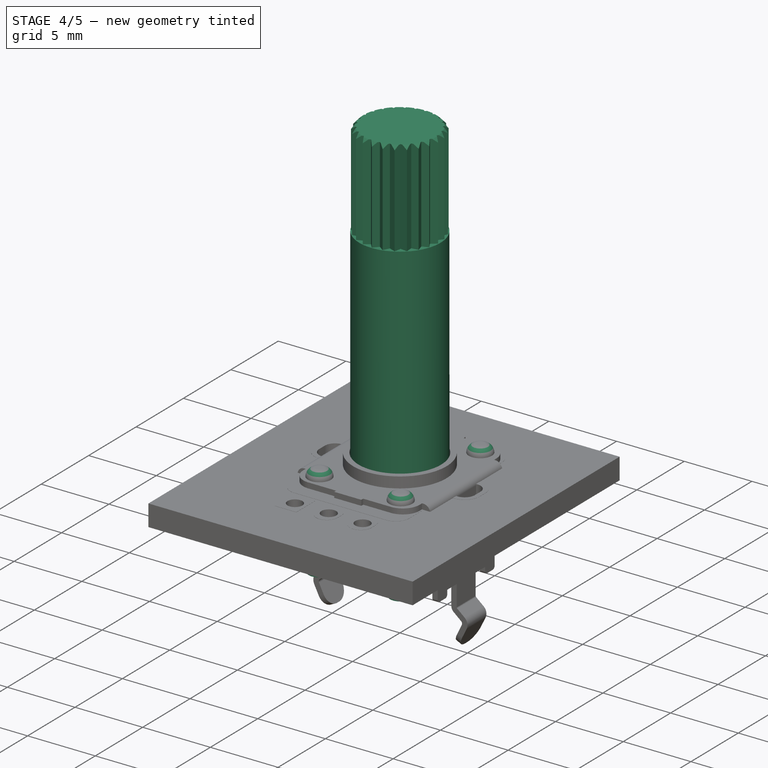
[diagram: stage 4 of 5 — iso view after this stage's code; geometry added in this stage tinted green]
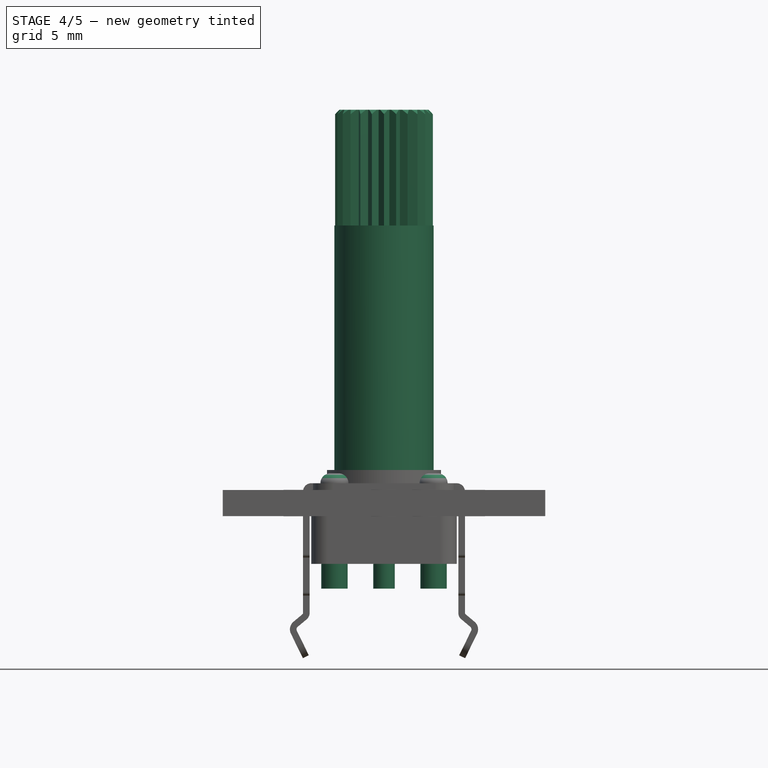
[diagram: stage 4 of 5 — front view after this stage's code; geometry added in this stage tinted green]
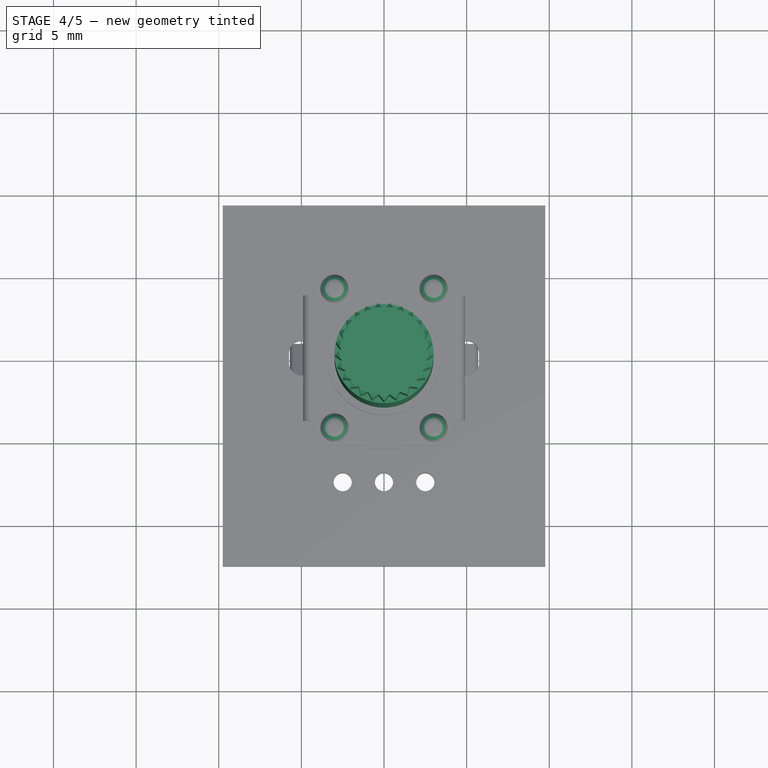
[diagram: stage 4 of 5 — top view after this stage's code; geometry added in this stage tinted green]
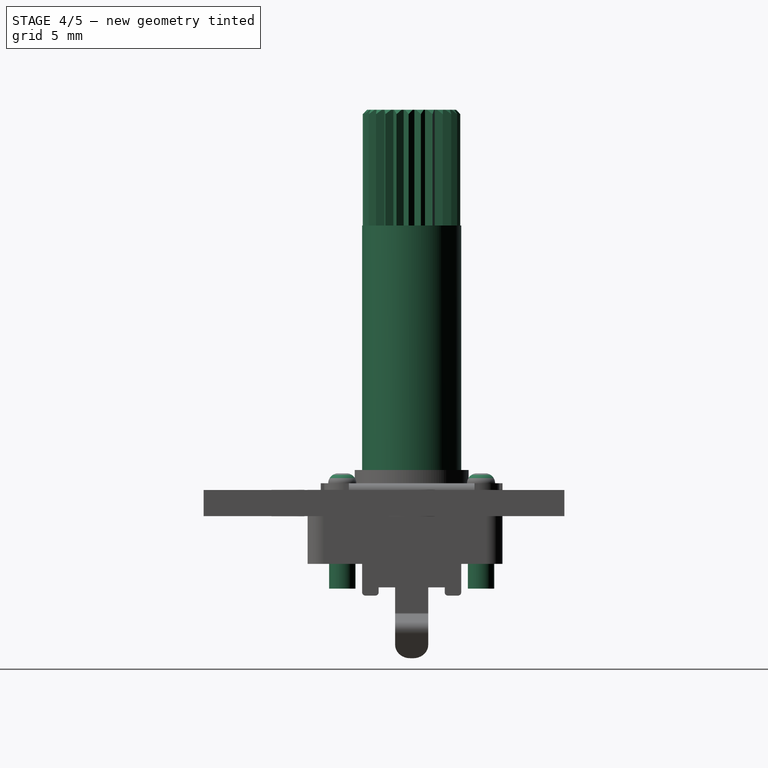
[diagram: stage 4 of 5 — right view after this stage's code; geometry added in this stage tinted green]
FEATURE [PartDesign::Fillet] Fillet001
  Base = -> Pad001 [Edge30,Edge32,Edge34,Edge36]
  BaseFeature = -> Pad001
  Radius = 0.6
FEATURE [Sketcher::SketchObject] Sketch002
  MapMode = 5
  Support = -> [Fillet001]
  sketch-geometry (1):
    g0: Circle CenterX=0 CenterY=0 CenterZ=0 NormalX=0 NormalY=0 NormalZ=1 AngleXU=0 Radius=3
  constraints (2):
    c: Coincident(g0,g-1)
    c: Radius(g0) = 3
FEATURE [PartDesign::Pad] Pad002
  BaseFeature = -> Fillet001
  Length = 23
  Length2 = 100
  Profile = -> Sketch002
  Type = 0
FEATURE [Sketcher::SketchObject] Sketch003
  MapMode = 5
  Placement = pos=(0,0,23) rot=(0,0,1;0rad)
  Support = -> [Pad002]
  sketch-geometry (3):
    g0: LineSegment StartX=-0.55 StartY=3.1 StartZ=0 EndX=0 EndY=2.6 EndZ=0
    g1: LineSegment StartX=0 StartY=2.6 StartZ=0 EndX=0.55 EndY=3.1 EndZ=0
    g2: LineSegment StartX=0.55 StartY=3.1 StartZ=0 EndX=-0.55 EndY=3.1 EndZ=0
  constraints (9):
    c: PointOnObject(g0,g-2)
    c: Coincident(g0,g1)
    c: Coincident(g1,g2)
    c: Coincident(g2,g0)
    c: Horizontal(g2)
    c: DistanceY(g-1,g0) = 2.6
    c: DistanceX(g2,g2) = 1.1
    c: DistanceY(g-1,g0) = 3.1
    c: Symmetric(g0,g1,g-2)
FEATURE [PartDesign::Chamfer] Chamfer
  Base = -> Pad002 [Edge39]
  BaseFeature = -> Pad002
  Size = 0.3
FEATURE [PartDesign::Pocket] Pocket
  BaseFeature = -> Chamfer
  Length = 7
  Length2 = 100
  Profile = -> Sketch003
  Type = 0
FEATURE [PartDesign::PolarPattern] PolarPattern
  Angle = 360
  Axis = -> Sketch003 [N_Axis]
  BaseFeature = -> Pocket
  Occurrences = 25
  Originals = -> [Pocket]
FEATURE [Part::Part2DObjectPython] Shape2DView002  # Draft 2D object (typed FeaturePython)
  HiddenLines = false
  InPlace = true
  Placement = pos=(0,0,0) rot=(0.57735,-0.57735,-0.57735;4.18879rad)
  Projection = (0,1,0)
  ProjectionMode = 0
  SegmentLength = 0.05
  Tessellation = false
  VisibleOnly = false
FEATURE [Sketcher::SketchObject] Sketch004
  MapMode = 5
  Placement = pos=(0,0,-4.48) rot=(1,0,0;3.14159rad)
  Support = -> [PolarPattern]
  sketch-geometry (6):
    g0: Circle CenterX=-3 CenterY=4.2 CenterZ=0 NormalX=0 NormalY=0 NormalZ=1 AngleXU=0 Radius=0.8
    g1: Circle CenterX=3 CenterY=4.2 CenterZ=0 NormalX=0 NormalY=0 NormalZ=1 AngleXU=0 Radius=0.8
    g2: Circle CenterX=3 CenterY=-4.2 CenterZ=0 NormalX=0 NormalY=0 NormalZ=1 AngleXU=0 Radius=0.8
    g3: Circle CenterX=-3 CenterY=-4.2 CenterZ=0 NormalX=0 NormalY=0 NormalZ=1 AngleXU=0 Radius=0.8
    g4: Circle CenterX=0 CenterY=-4.2 CenterZ=0 NormalX=0 NormalY=0 NormalZ=1 AngleXU=0 Radius=0.65
    g5: Circle CenterX=0 CenterY=4.2 CenterZ=0 NormalX=0 NormalY=0 NormalZ=1 AngleXU=0 Radius=0.65
  constraints (16):
    c: DistanceX(g0) = -3
    c: DistanceY(g0) = 4.2
    c: Symmetric(g1,g0,g-2)
    c: Symmetric(g3,g2,g-2)
    c: Radius(g0) = 0.8
    c: Equal(g0,g1)
    c: Vertical(g3,g0)
    c: Equal(g0,g3)
    c: Equal(g3,g2)
    c: DistanceY(g3,g-1) = 4.2
    c: PointOnObject(g4,g-2)
    c: Horizontal(g4,g3)
    c: Radius(g4) = 0.65
    c: PointOnObject(g5,g-2)
    c: Horizontal(g5,g0)
    c: Radius(g5) = 0.65
FEATURE [Part::Part2DObjectPython] Shape2DView  # Draft 2D object (typed FeaturePython)
  HiddenLines = false
  InPlace = true
  Projection = (0,0,1)
  ProjectionMode = 0
  SegmentLength = 0.05
  Tessellation = false
  VisibleOnly = false
FEATURE [PartDesign::Pad] Pad003
  BaseFeature = -> PolarPattern
  Length = 1.5
  Length2 = 100
  Profile = -> Sketch004
  Type = 0
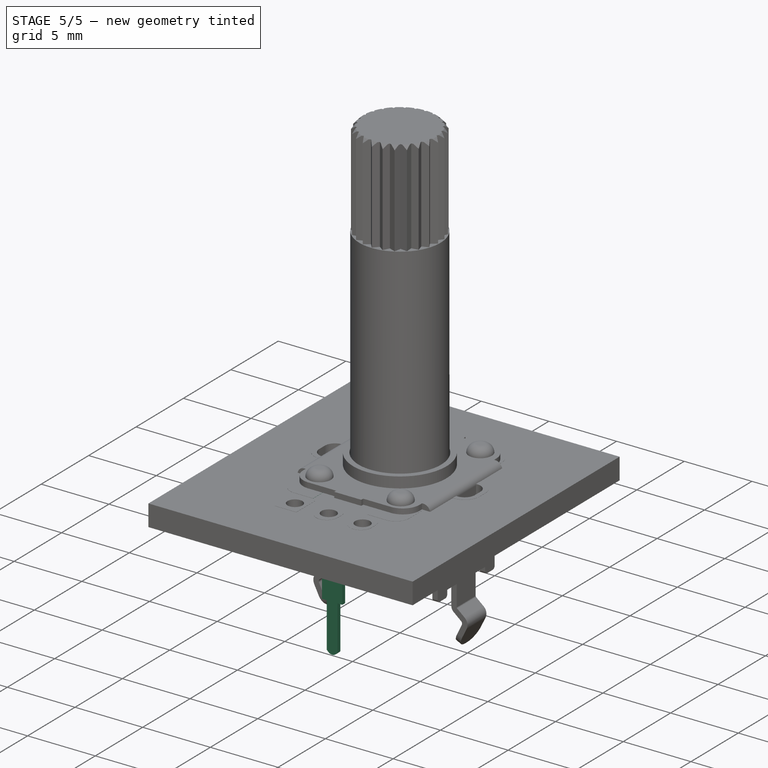
[diagram: stage 5 of 5 — iso view after this stage's code; geometry added in this stage tinted green]
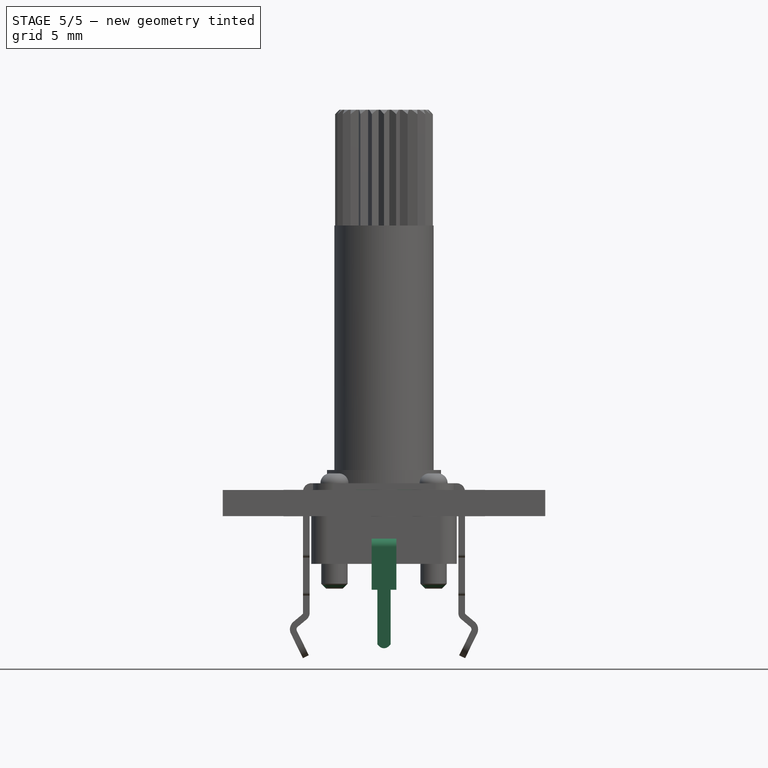
[diagram: stage 5 of 5 — front view after this stage's code; geometry added in this stage tinted green]
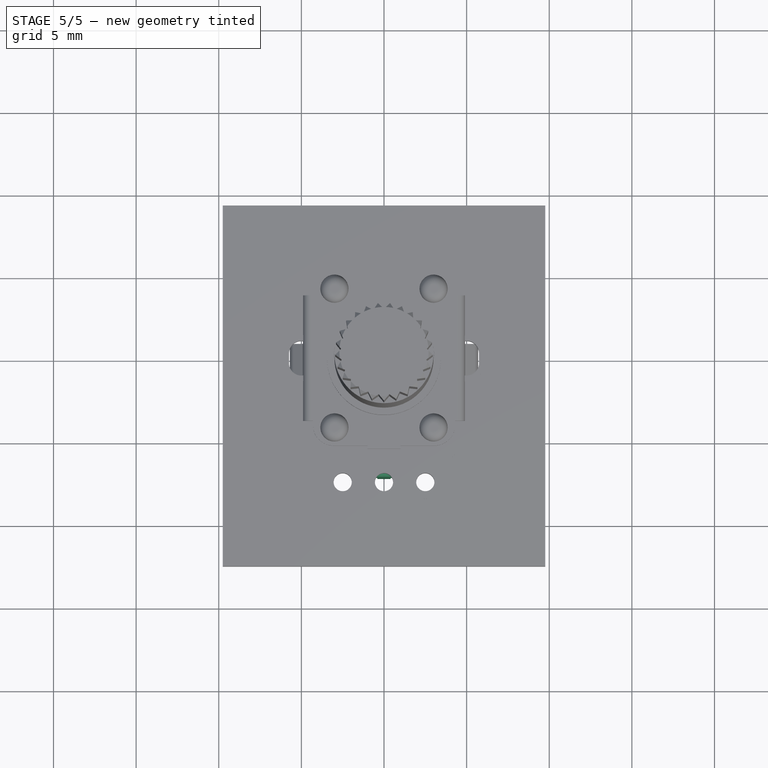
[diagram: stage 5 of 5 — top view after this stage's code; geometry added in this stage tinted green]
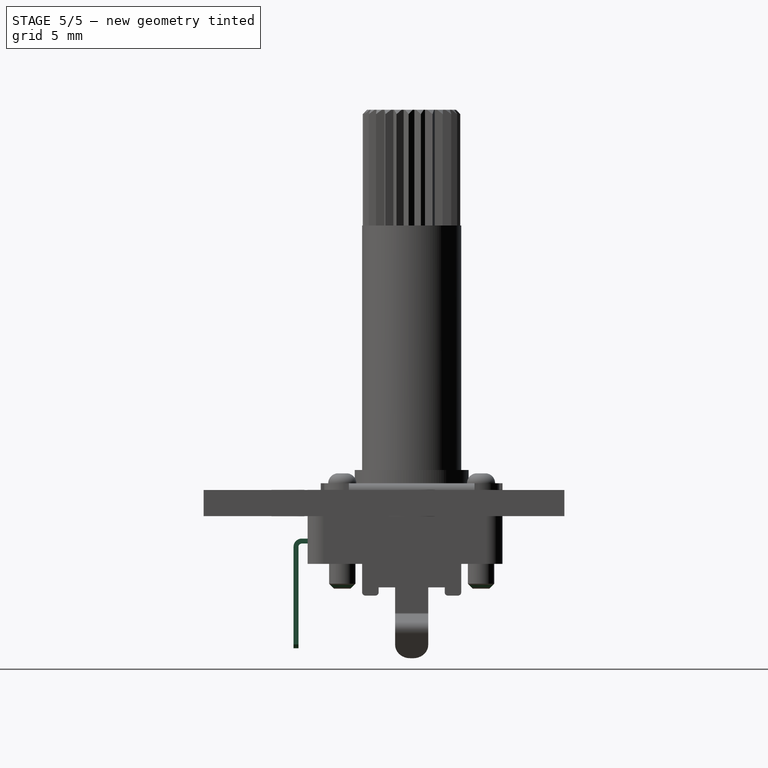
[diagram: stage 5 of 5 — right view after this stage's code; geometry added in this stage tinted green]
FEATURE [PartDesign::Chamfer] Chamfer001
  Base = -> Pad003 [Edge383,Edge385,Edge391,Edge393,Edge387,Edge389]
  BaseFeature = -> Pad003
  Size = 0.3
FEATURE [Part::Part2DObjectPython] Shape2DView005  # Draft 2D object (typed FeaturePython)
  HiddenLines = false
  InPlace = true
  Placement = pos=(0,0,0) rot=(0.57735,-0.57735,0.57735;2.0944rad)
  Projection = (0,-1,0)
  ProjectionMode = 0
  SegmentLength = 0.05
  Tessellation = false
  VisibleOnly = false
FEATURE [Sketcher::SketchObject] Sketch008
  MapMode = 5
  Placement = pos=(0,0,0) rot=(1,0,0;1.5708rad)
  Support = -> [XZ_Plane002]
  expr: Constraints[10] = 1.5 / 2
  sketch-geometry (4):
    g0: LineSegment StartX=-0.75 StartY=-2.95 StartZ=0 EndX=0.75 EndY=-2.95 EndZ=0
    g1: LineSegment StartX=0.75 StartY=-2.95 StartZ=0 EndX=0.75 EndY=-3.25 EndZ=0
    g2: LineSegment StartX=0.75 StartY=-3.25 StartZ=0 EndX=-0.75 EndY=-3.25 EndZ=0
    g3: LineSegment StartX=-0.75 StartY=-3.25 StartZ=0 EndX=-0.75 EndY=-2.95 EndZ=0
  constraints (12):
    c: Coincident(g0,g1)
    c: Coincident(g1,g2)
    c: Coincident(g2,g3)
    c: Coincident(g3,g0)
    c: Horizontal(g0)
    c: Horizontal(g2)
    c: Vertical(g1)
    c: Vertical(g3)
    c: DistanceY(g3,g3) = 0.3
    c: DistanceX(g0,g0) = 1.5
    c: DistanceX(g0) = 0.75
    c: DistanceY(g0) = -2.95
FEATURE [PartDesign::Pad] Pad005
  Length = 6.65
  Length2 = 100
  Placement = pos=(0,0,0) rot=(1,0,0;1.5708rad)
  Profile = -> Sketch008
  Type = 0
FEATURE [PartDesign::FeaturePython] Bend006  # WARN: FeaturePython — macro-defined, semantics opaque (R4)
  BaseFeature = -> Pad005
  angle = 90
  baseObject = -> Pad005 [Face6]
  extend1 = 0
  extend2 = 0
  gap1 = 0
  gap2 = 0
  invert = false
  kfactor = 0.45
  length = 6.5
  miterangle1 = 0
  miterangle2 = 0
  radius = 0.2
  reliefType = 0
  reliefd = 1
  reliefw = 0.5
  unfold = false
FEATURE [Sketcher::SketchObject] Sketch009
  MapMode = 5
  Placement = pos=(0,-7.15,-1e-12) rot=(1,0,0;1.5708rad)
  Support = -> [Bend006]
  sketch-geometry (9):
    g0: LineSegment StartX=1 StartY=-6.05 StartZ=0 EndX=0.4 EndY=-6.05 EndZ=0
    g1: LineSegment StartX=0.4 StartY=-6.05 StartZ=0 EndX=0.4 EndY=-9.35 EndZ=0
    g2: LineSegment StartX=0.4 StartY=-9.35 StartZ=0 EndX=0 EndY=-9.75 EndZ=0
    g3: LineSegment StartX=0 StartY=-9.75 StartZ=0 EndX=-0.4 EndY=-9.35 EndZ=0
    g4: LineSegment StartX=-0.4 StartY=-9.35 StartZ=0 EndX=-0.4 EndY=-6.05 EndZ=0
    g5: LineSegment StartX=-0.4 StartY=-6.05 StartZ=0 EndX=-1 EndY=-6.05 EndZ=0
    g6: LineSegment StartX=-1 StartY=-6.05 StartZ=0 EndX=-1 EndY=-10.25 EndZ=0
    g7: LineSegment StartX=-1 StartY=-10.25 StartZ=0 EndX=1 EndY=-10.25 EndZ=0
    g8: LineSegment StartX=1 StartY=-10.25 StartZ=0 EndX=1 EndY=-6.05 EndZ=0
  constraints (27):
    c: Horizontal(g0)
    c: Coincident(g0,g1)
    c: Vertical(g1)
    c: Coincident(g1,g2)
    c: Coincident(g2,g3)
    c: Coincident(g3,g4)
    c: Vertical(g4)
    c: Coincident(g4,g5)
    c: Horizontal(g5)
    c: Coincident(g5,g6)
    c: Vertical(g6)
    c: Coincident(g6,g7)
    c: Horizontal(g7)
    c: Coincident(g7,g8)
    c: Coincident(g8,g0)
    c: Vertical(g8)
    c: DistanceX(g4,g0) = 0.8
    c: DistanceY(g1,g0) = 3.3
    c: Horizontal(g1,g3)
    c: DistanceX(g2,g1) = 0.4
    c: DistanceY(g2,g1) = 0.4
    c: DistanceY(g8,g8) = 4.2
    c: DistanceX(g7,g7) = 2
    c: DistanceX(g5,g5) = 0.6
    c: Horizontal(g4,g0)
    c: PointOnObject(g2,g-2)
    c: DistanceY(g0,g-1) = 6.05
FEATURE [PartDesign::Pocket] Pocket003
  BaseFeature = -> Bend006
  Length = 0.4
  Length2 = 100
  Profile = -> Sketch009
  Type = 0
FEATURE [PartDesign::Fillet] Fillet004
  Base = -> Pocket003 [Edge36]
  BaseFeature = -> Pocket003
  Radius = 0.4
FEATURE [PartDesign::Body] Body002
  Group = -> [Sketch008,Pad005,Bend006,Sketch009,Pocket003,Fillet004]
  Origin = -> Origin002
  Tip = -> Fillet004
FEATURE [Sketcher::SketchObject] Sketch010
  MapMode = 5
  Placement = pos=(0,-6.3,0) rot=(1,0,0;1.5708rad)
  Support = -> [Chamfer001]
  sketch-geometry (4):
    g0: LineSegment StartX=-2 StartY=0 StartZ=0 EndX=2 EndY=0 EndZ=0
    g1: LineSegment StartX=2 StartY=0 StartZ=0 EndX=2 EndY=-1.5 EndZ=0
    g2: LineSegment StartX=2 StartY=-1.5 StartZ=0 EndX=-2 EndY=-1.5 EndZ=0
    g3: LineSegment StartX=-2 StartY=-1.5 StartZ=0 EndX=-2 EndY=0 EndZ=0
  constraints (12):
    c: Coincident(g0,g1)
    c: Coincident(g1,g2)
    c: Coincident(g2,g3)
    c: Coincident(g3,g0)
    c: Horizontal(g0)
    c: Horizontal(g2)
    c: Vertical(g1)
    c: Vertical(g3)
    c: PointOnObject(g0,g-1)
    c: Symmetric(g0,g0,g-2)
    c: DistanceX(g2) = -2
    c: DistanceY(g2) = -1.5
FEATURE [PartDesign::Pocket] Pocket004
  BaseFeature = -> Chamfer001
  Length = 2.5
  Length2 = 100
  Profile = -> Sketch010
  Type = 0
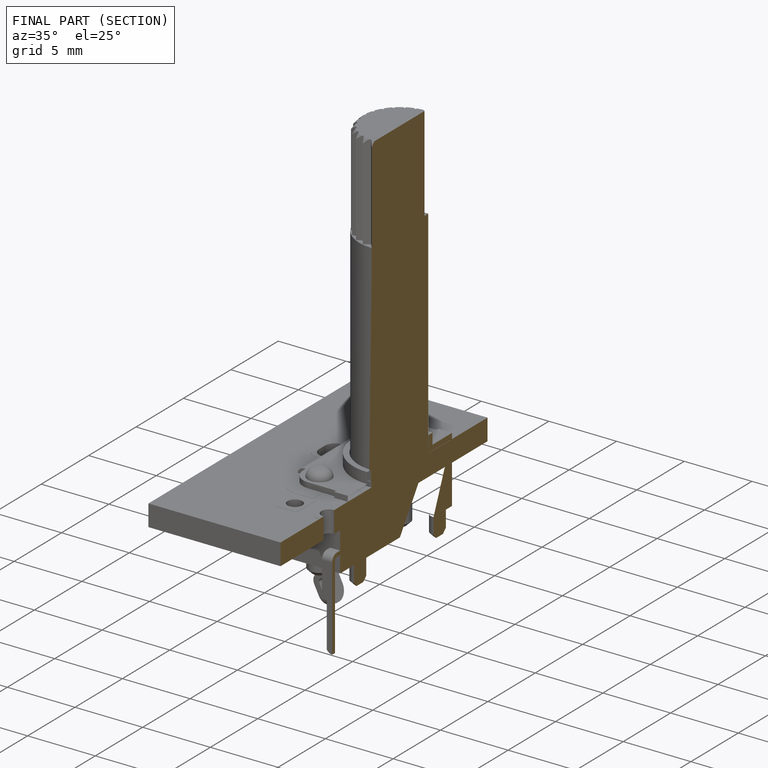
[diagram: finished part — half-section view (interior)]
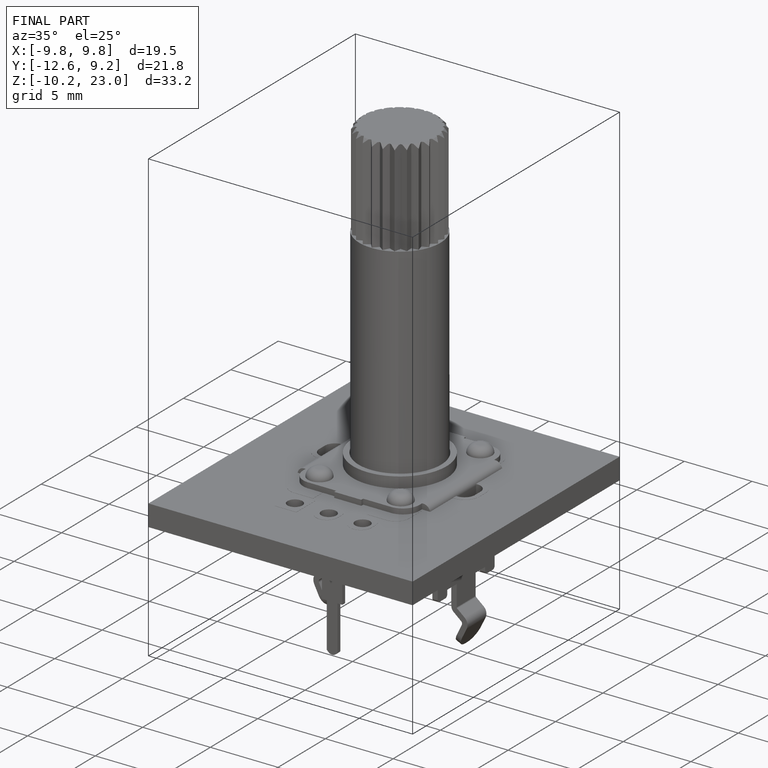
[diagram: finished part — iso view with bounding-box wireframe]
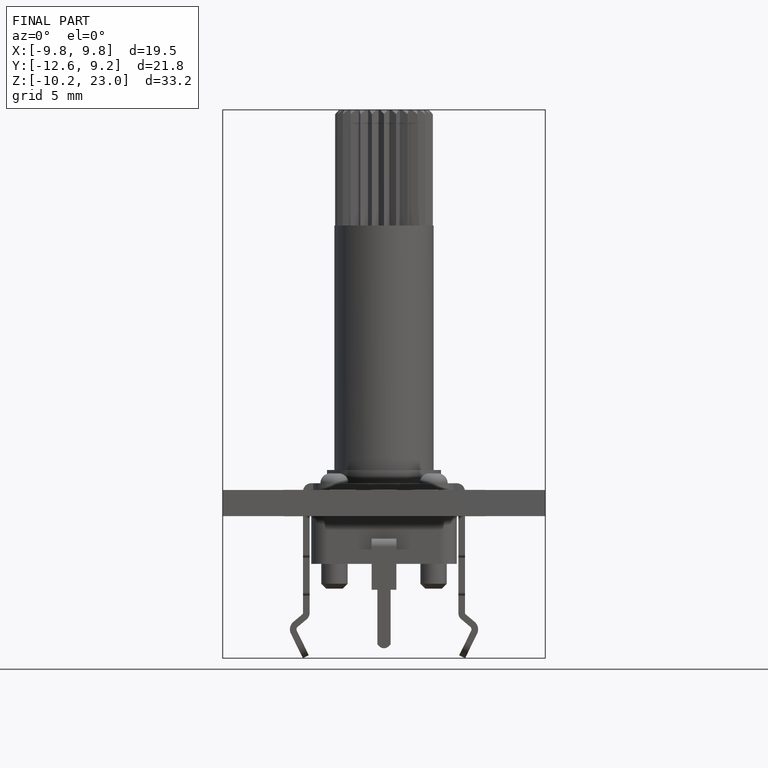
[diagram: finished part — front view with bounding-box wireframe]
